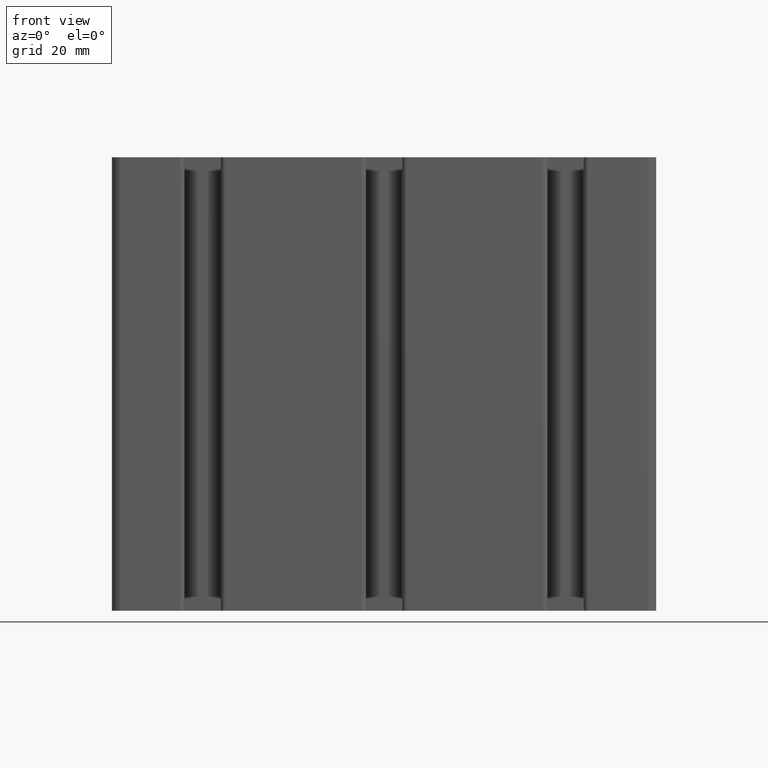
[diagram: clean part render]
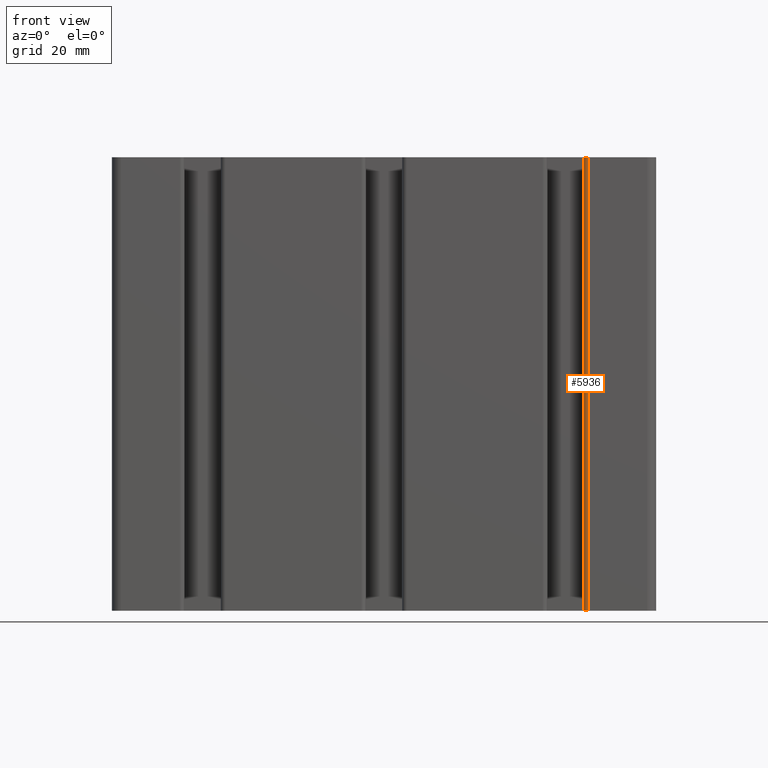
[diagram: same view with one face highlighted and labeled with its STEP entity id]
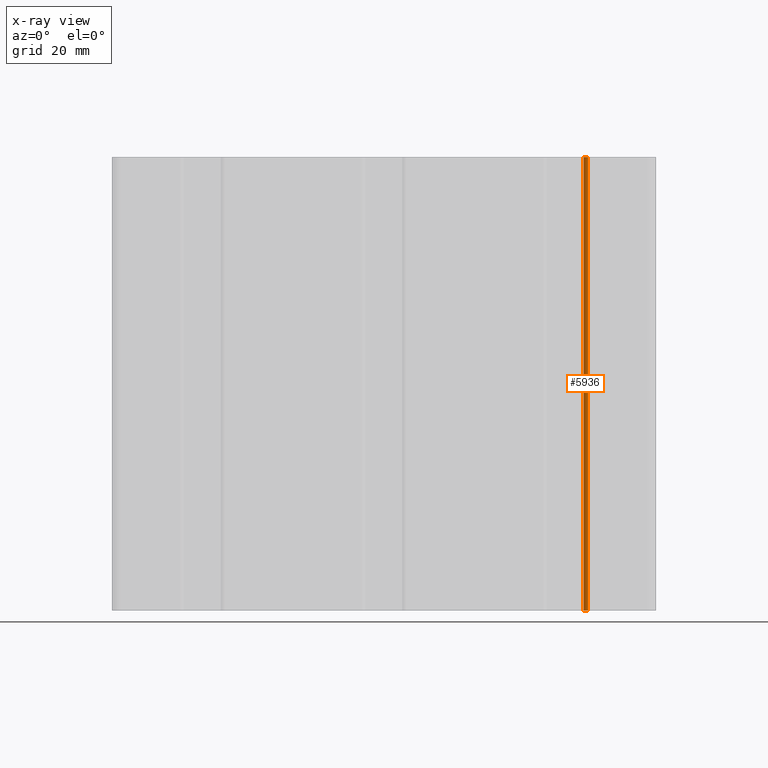
[diagram: x-ray of the same camera — body ghosted, the highlighted face saturated]
A machine part, front view. The second image highlights one B-rep face of the part: STEP entity #5936.
The next image is the same camera in x-ray: the body ghosted, the highlighted face saturated — about 0% of this face is hidden behind the body in this view.
In plain terms, the highlighted cylindrical surface (edge-blend (fillet) strip) has radius 1 mm, axis along (0, 0, 1).
Its self-contained STEP definition (entity closure, byte-faithful):
#388=FACE_OUTER_BOUND('',#691,.T.);
#691=EDGE_LOOP('',(#4583,#4584,#4585,#4586));
#1212=LINE('',#9596,#1820);
#1213=LINE('',#9602,#1821);
#1820=VECTOR('',#7797,100.);
#1821=VECTOR('',#7804,100.);
#2223=CIRCLE('',#6430,0.999998004051179);
#2224=CIRCLE('',#6431,0.999998004051179);
#2717=VERTEX_POINT('',#9592);
#2718=VERTEX_POINT('',#9594);
#2719=VERTEX_POINT('',#9598);
#2720=VERTEX_POINT('',#9600);
#3502=EDGE_CURVE('',#2718,#2717,#1212,.T.);
#3503=EDGE_CURVE('',#2717,#2719,#2223,.T.);
#3504=EDGE_CURVE('',#2720,#2718,#2224,.T.);
#3505=EDGE_CURVE('',#2719,#2720,#1213,.T.);
#4583=ORIENTED_EDGE('',*,*,#3503,.F.);
#4584=ORIENTED_EDGE('',*,*,#3502,.F.);
#4585=ORIENTED_EDGE('',*,*,#3504,.F.);
#4586=ORIENTED_EDGE('',*,*,#3505,.F.);
#5694=CYLINDRICAL_SURFACE('',#6429,0.999998004051179);
#5936=ADVANCED_FACE('',(#388),#5694,.T.);
#6429=AXIS2_PLACEMENT_3D('',#9597,#7798,#7799);
#6430=AXIS2_PLACEMENT_3D('',#9599,#7800,#7801);
#6431=AXIS2_PLACEMENT_3D('',#9601,#7802,#7803);
#7797=DIRECTION('',(0.,0.,1.));
#7798=DIRECTION('center_axis',(0.,0.,1.));
#7799=DIRECTION('ref_axis',(1.,0.,0.));
#7800=DIRECTION('center_axis',(0.,0.,1.));
#7801=DIRECTION('ref_axis',(1.,0.,0.));
#7802=DIRECTION('center_axis',(0.,0.,-1.));
#7803=DIRECTION('ref_axis',(1.,0.,0.));
#7804=DIRECTION('',(0.,0.,-1.));
#9592=CARTESIAN_POINT('',(44.,-19.0000019959488,100.));
#9594=CARTESIAN_POINT('',(44.,-19.0000019959488,0.));
#9596=CARTESIAN_POINT('',(44.,-19.0000019959488,0.));
#9597=CARTESIAN_POINT('Origin',(44.9999980040512,-19.0000019959488,0.));
#9598=CARTESIAN_POINT('',(44.9999980040512,-20.,100.));
#9599=CARTESIAN_POINT('Origin',(44.9999980040512,-19.0000019959488,100.));
#9600=CARTESIAN_POINT('',(44.9999980040512,-20.,0.));
#9601=CARTESIAN_POINT('Origin',(44.9999980040512,-19.0000019959488,0.));
#9602=CARTESIAN_POINT('',(44.9999980040512,-20.,0.));